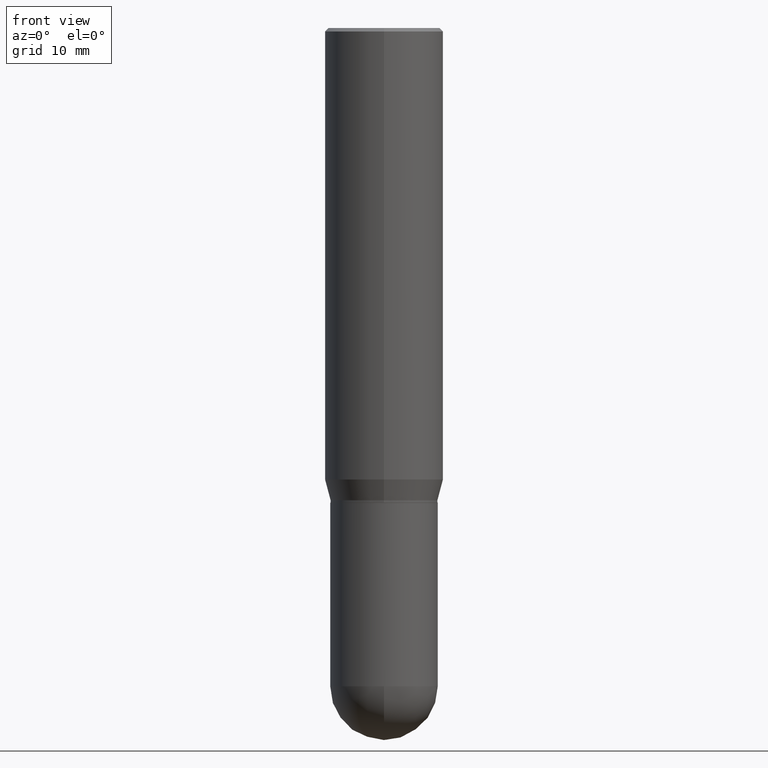
[diagram: clean part render]
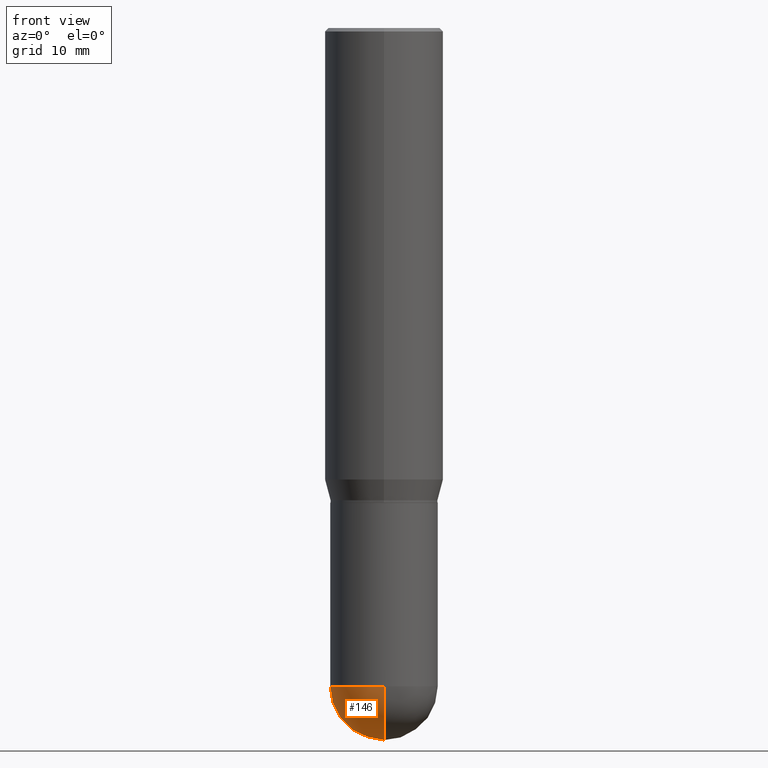
[diagram: same view with one face highlighted and labeled with its STEP entity id]
A machine part, front view. The second image highlights one B-rep face of the part: STEP entity #146.
In plain terms, the highlighted spherical surface has radius 5.7544 mm.
Its self-contained STEP definition (entity closure, byte-faithful):
#1 = CARTESIAN_POINT ( 'NONE',  ( 1.581990194629891371E-15, 0.2265499999999903147, -2.773450000000000859 ) ) ;
#16 = CARTESIAN_POINT ( 'NONE',  ( -1.609734567864438547E-15, -0.2265500000000096603, -2.773449999999999971 ) ) ;
#39 = AXIS2_PLACEMENT_3D ( 'NONE', #82, #508, #164 ) ;
#78 = DIRECTION ( 'NONE',  ( -2.445468806185136597E-29, 3.491481338843145583E-15, 1.000000000000000000 ) ) ;
#82 = CARTESIAN_POINT ( 'NONE',  ( 6.784390825462294501E-29, -9.680577122470524352E-15, -2.773450000000000415 ) ) ;
#92 = VERTEX_POINT ( 'NONE', #487 ) ;
#97 = CARTESIAN_POINT ( 'NONE',  ( 6.784390825462294501E-29, -9.680577122470524352E-15, -2.773450000000000415 ) ) ;
#129 = CARTESIAN_POINT ( 'NONE',  ( 6.784390825462294501E-29, -9.680577122470524352E-15, -2.773450000000000415 ) ) ;
#146 = ADVANCED_FACE ( 'NONE', ( #284 ), #449, .T. ) ;
#162 = VERTEX_POINT ( 'NONE', #16 ) ;
#164 = DIRECTION ( 'NONE',  ( -7.105427357601000281E-15, -1.000000000000000000, 0.000000000000000000 ) ) ;
#175 = DIRECTION ( 'NONE',  ( 1.000000000000000000, -6.982962677686265922E-15, 4.883557194083112340E-29 ) ) ;
#183 = EDGE_CURVE ( 'NONE', #385, #92, #342, .T. ) ;
#209 = AXIS2_PLACEMENT_3D ( 'NONE', #433, #78, #352 ) ;
#223 = CARTESIAN_POINT ( 'NONE',  ( 6.782385460514168389E-29, -9.683448919214523504E-15, -2.773450000000000415 ) ) ;
#236 = CARTESIAN_POINT ( 'NONE',  ( 7.348098679644216605E-29, -1.045770003316809804E-14, -3.000000000000000444 ) ) ;
#248 = EDGE_CURVE ( 'NONE', #333, #162, #490, .T. ) ;
#251 = AXIS2_PLACEMENT_3D ( 'NONE', #97, #367, #321 ) ;
#255 = ORIENTED_EDGE ( 'NONE', *, *, #248, .T. ) ;
#280 = AXIS2_PLACEMENT_3D ( 'NONE', #129, #175, #400 ) ;
#284 = FACE_OUTER_BOUND ( 'NONE', #498, .T. ) ;
#306 = CIRCLE ( 'NONE', #457, 0.2265500000000000291 ) ;
#321 = DIRECTION ( 'NONE',  ( 6.982962677686265922E-15, 1.000000000000000000, -2.411695425878847213E-15 ) ) ;
#332 = DIRECTION ( 'NONE',  ( 1.000000000000000000, -6.982962677686266711E-15, 0.000000000000000000 ) ) ;
#333 = VERTEX_POINT ( 'NONE', #236 ) ;
#342 = CIRCLE ( 'NONE', #209, 0.2265500000000000291 ) ;
#352 = DIRECTION ( 'NONE',  ( 1.000000000000000000, -6.982962677686266711E-15, 0.000000000000000000 ) ) ;
#367 = DIRECTION ( 'NONE',  ( -1.000000000000000000, 6.982962677686265922E-15, -4.883557194083112901E-29 ) ) ;
#378 = DIRECTION ( 'NONE',  ( -2.445468806185136597E-29, 3.491481338843145583E-15, 1.000000000000000000 ) ) ;
#385 = VERTEX_POINT ( 'NONE', #1 ) ;
#399 = ORIENTED_EDGE ( 'NONE', *, *, #492, .F. ) ;
#400 = DIRECTION ( 'NONE',  ( 6.982962677686265133E-15, 1.000000000000000000, 0.000000000000000000 ) ) ;
#433 = CARTESIAN_POINT ( 'NONE',  ( 6.782385460514168389E-29, -9.683448919214523504E-15, -2.773450000000000415 ) ) ;
#442 = CIRCLE ( 'NONE', #280, 0.2265499999999999459 ) ;
#445 = EDGE_CURVE ( 'NONE', #333, #385, #442, .T. ) ;
#449 = SPHERICAL_SURFACE ( 'NONE', #251, 0.2265499999999999459 ) ;
#450 = ORIENTED_EDGE ( 'NONE', *, *, #183, .F. ) ;
#457 = AXIS2_PLACEMENT_3D ( 'NONE', #223, #378, #332 ) ;
#467 = ORIENTED_EDGE ( 'NONE', *, *, #445, .F. ) ;
#487 = CARTESIAN_POINT ( 'NONE',  ( -0.2265500000000000291, -6.723471230585900551E-15, -2.773450000000000415 ) ) ;
#490 = CIRCLE ( 'NONE', #39, 0.2265499999999999459 ) ;
#492 = EDGE_CURVE ( 'NONE', #92, #162, #306, .T. ) ;
#498 = EDGE_LOOP ( 'NONE', ( #467, #255, #399, #450 ) ) ;
#508 = DIRECTION ( 'NONE',  ( -1.000000000000000000, 7.105427357601001070E-15, -4.926315508542082329E-29 ) ) ;